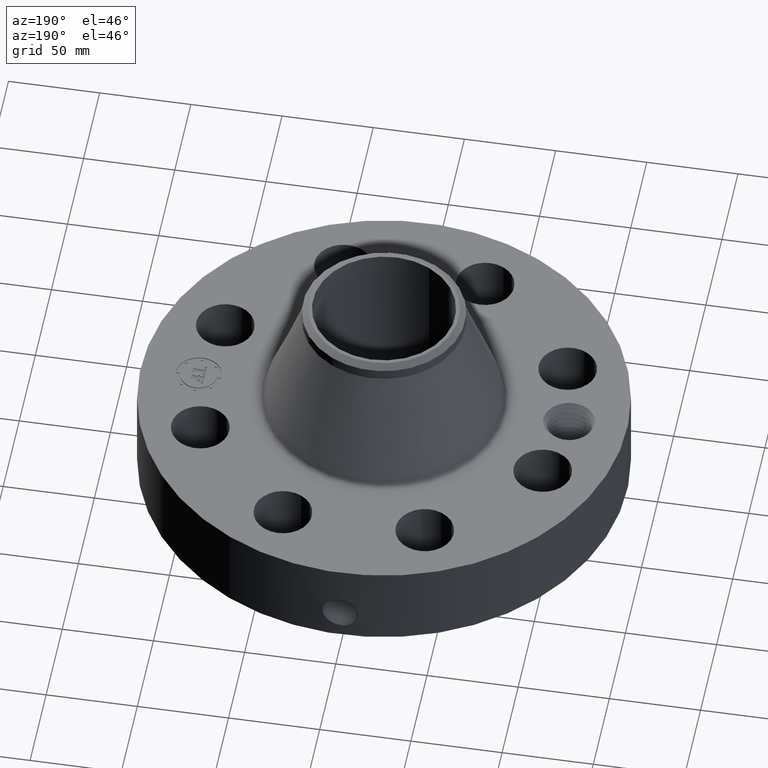
[diagram: clean part render]
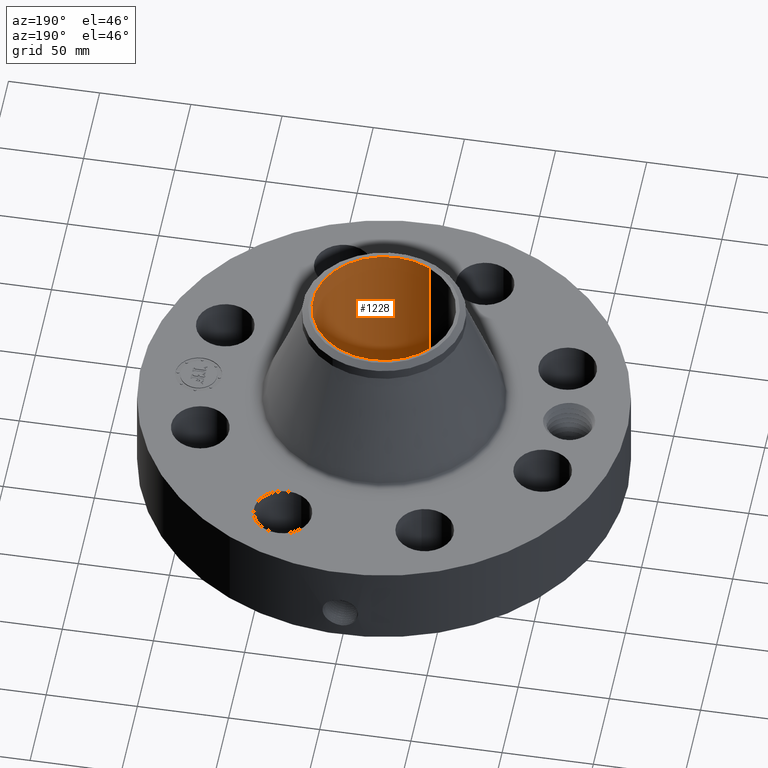
[diagram: same view with one face highlighted and labeled with its STEP entity id]
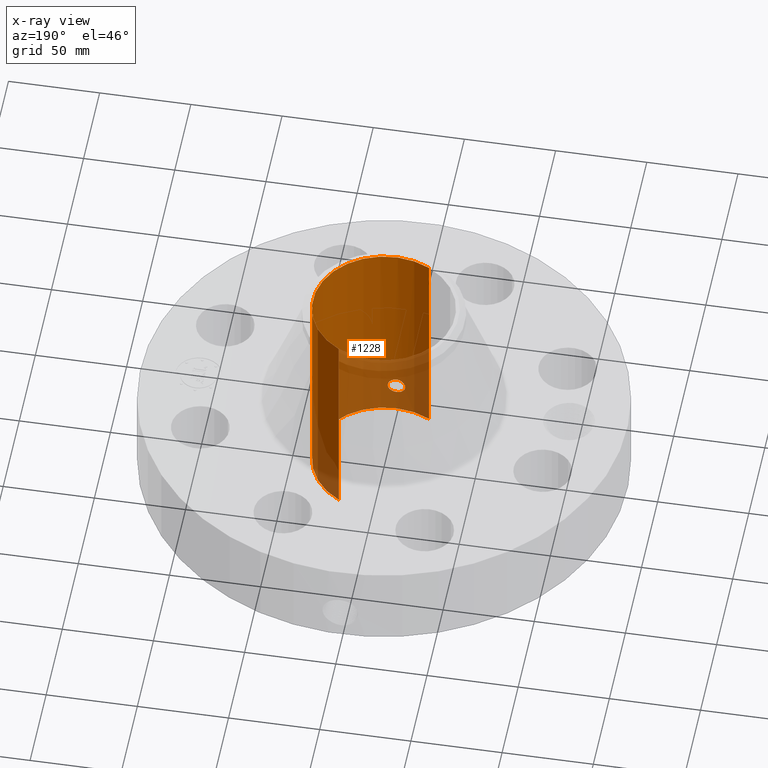
[diagram: x-ray of the same camera — body ghosted, the highlighted face saturated]
A machine part, auxiliary view. The second image highlights one B-rep face of the part: STEP entity #1228.
The next image is the same camera in x-ray: the body ghosted, the highlighted face saturated — about 32% of this face is hidden behind the body in this view.
In plain terms, the highlighted cylindrical surface (partial cylindrical patch) has radius 38.9636 mm, axis along (0, 0, -1).
Its self-contained STEP definition (entity closure, byte-faithful):
#249=AXIS2_PLACEMENT_3D('Circle Axis2P3D',#247,#248,$) ;
#1159=AXIS2_PLACEMENT_3D('Cylinder Axis2P3D',#1156,#1157,#1158) ;
#1163=AXIS2_PLACEMENT_3D('Circle Axis2P3D',#1161,#1162,$) ;
#247=CARTESIAN_POINT('Axis2P3D Location',(0.,0.,0.250000000001)) ;
#251=CARTESIAN_POINT('Vertex',(0.735438776222,1.34621164995,0.250000000001)) ;
#253=CARTESIAN_POINT('Vertex',(-0.735438776222,-1.34621164995,0.250000000001)) ;
#1156=CARTESIAN_POINT('Axis2P3D Location',(0.,0.,2.56000000001)) ;
#1161=CARTESIAN_POINT('Axis2P3D Location',(0.,0.,4.87000000002)) ;
#1165=CARTESIAN_POINT('Vertex',(0.735438776222,1.34621164995,4.87000000002)) ;
#1167=CARTESIAN_POINT('Vertex',(-0.735438776222,-1.34621164995,4.87000000002)) ;
#1170=CARTESIAN_POINT('Line Origine',(0.735438776222,1.34621164995,2.56000000001)) ;
#1175=CARTESIAN_POINT('Line Origine',(-0.735438776222,-1.34621164995,2.56000000001)) ;
#1187=CARTESIAN_POINT('Control Point',(0.164546730355,-1.52514929549,0.850107711515)) ;
#1188=CARTESIAN_POINT('Control Point',(0.153730987741,-1.52631619443,0.830309627459)) ;
#1189=CARTESIAN_POINT('Control Point',(0.139943198897,-1.52770675216,0.812148390871)) ;
#1190=CARTESIAN_POINT('Control Point',(0.123507748959,-1.52917958204,0.796208112034)) ;
#1191=CARTESIAN_POINT('Control Point',(0.0771300553255,-1.53257507292,0.763187347527)) ;
#1192=CARTESIAN_POINT('Control Point',(0.0211174569544,-1.53443807468,0.74899752833)) ;
#1193=CARTESIAN_POINT('Control Point',(-0.0139156713073,-1.53452842349,0.74833651336)) ;
#1194=CARTESIAN_POINT('Control Point',(-0.0704492146867,-1.53291709887,0.760416237495)) ;
#1195=CARTESIAN_POINT('Control Point',(-0.118051609566,-1.52962023944,0.791691344337)) ;
#1196=CARTESIAN_POINT('Control Point',(-0.135083668773,-1.52815406454,0.807020195609)) ;
#1197=CARTESIAN_POINT('Control Point',(-0.174443725802,-1.52429835588,0.855045646795)) ;
#1198=CARTESIAN_POINT('Control Point',(-0.192228358506,-1.52190251018,0.916011178547)) ;
#1199=CARTESIAN_POINT('Control Point',(-0.192989830594,-1.52179279368,0.956827431152)) ;
#1200=CARTESIAN_POINT('Control Point',(-0.183177815632,-1.52313920758,0.995788315651)) ;
#1201=CARTESIAN_POINT('Control Point',(-0.164546730355,-1.52514929549,1.02989228849)) ;
#1202=CARTESIAN_POINT('Vertex',(0.164546730355,-1.52514929549,0.850107711515)) ;
#1204=CARTESIAN_POINT('Vertex',(-0.164546730355,-1.52514929549,1.02989228849)) ;
#1208=CARTESIAN_POINT('Control Point',(-0.164546730355,-1.52514929549,1.02989228849)) ;
#1209=CARTESIAN_POINT('Control Point',(-0.153730987742,-1.52631619443,1.04969037255)) ;
#1210=CARTESIAN_POINT('Control Point',(-0.139943198899,-1.52770675216,1.06785160913)) ;
#1211=CARTESIAN_POINT('Control Point',(-0.123507748955,-1.52917958204,1.08379188798)) ;
#1212=CARTESIAN_POINT('Control Point',(-0.0771300553223,-1.53257507292,1.11681265248)) ;
#1213=CARTESIAN_POINT('Control Point',(-0.0211174569534,-1.53443807468,1.13100247168)) ;
#1214=CARTESIAN_POINT('Control Point',(0.0139156713103,-1.53452842349,1.13166348665)) ;
#1215=CARTESIAN_POINT('Control Point',(0.0704492146782,-1.53291709887,1.11958376251)) ;
#1216=CARTESIAN_POINT('Control Point',(0.11805160955,-1.52962023944,1.08830865568)) ;
#1217=CARTESIAN_POINT('Control Point',(0.135083668788,-1.52815406454,1.07297980438)) ;
#1218=CARTESIAN_POINT('Control Point',(0.174443725814,-1.52429835588,1.02495435319)) ;
#1219=CARTESIAN_POINT('Control Point',(0.192228358514,-1.52190251018,0.963988821434)) ;
#1220=CARTESIAN_POINT('Control Point',(0.1929898306,-1.52179279367,0.923172568881)) ;
#1221=CARTESIAN_POINT('Control Point',(0.183177815638,-1.52313920758,0.884211684368)) ;
#1222=CARTESIAN_POINT('Control Point',(0.164546730355,-1.52514929549,0.850107711515)) ;
#248=DIRECTION('Axis2P3D Direction',(0.,0.,-0.0393700787402)) ;
#1157=DIRECTION('Axis2P3D Direction',(0.,0.,-0.0393700787402)) ;
#1158=DIRECTION('Axis2P3D XDirection',(-0.0188750212049,-0.0345504945626,0.)) ;
#1162=DIRECTION('Axis2P3D Direction',(0.,0.,-0.0393700787402)) ;
#1171=DIRECTION('Vector Direction',(0.,0.,-0.0393700787402)) ;
#1176=DIRECTION('Vector Direction',(0.,0.,-0.0393700787402)) ;
#1172=VECTOR('Line Direction',#1171,0.0393700787402) ;
#1177=VECTOR('Line Direction',#1176,0.0393700787402) ;
#1181=ORIENTED_EDGE('',*,*,#1169,.F.) ;
#1182=ORIENTED_EDGE('',*,*,#1174,.T.) ;
#1183=ORIENTED_EDGE('',*,*,#255,.T.) ;
#1184=ORIENTED_EDGE('',*,*,#1179,.F.) ;
#1225=ORIENTED_EDGE('',*,*,#1206,.F.) ;
#1226=ORIENTED_EDGE('',*,*,#1223,.F.) ;
#1227=FACE_BOUND('',#1224,.T.) ;
#1228=ADVANCED_FACE('PartBody',(#1185,#1227),#1160,.F.) ;
#1186=B_SPLINE_CURVE_WITH_KNOTS('',5,(#1187,#1188,#1189,#1190,#1191,#1192,#1193,#1194,#1195,#1196,#1197,#1198,#1199,#1200,#1201),.UNSPECIFIED.,.F.,.U.,(6,3,3,3,6),(0.,4.05727166035,10.1291862377,14.1895477964,21.178561588),.UNSPECIFIED.) ;
#1207=B_SPLINE_CURVE_WITH_KNOTS('',5,(#1208,#1209,#1210,#1211,#1212,#1213,#1214,#1215,#1216,#1217,#1218,#1219,#1220,#1221,#1222),.UNSPECIFIED.,.F.,.U.,(6,3,3,3,6),(0.,4.05727165998,10.1291862373,14.189547794,21.1785615879),.UNSPECIFIED.) ;
#250=CIRCLE('generated circle',#249,1.53400000001) ;
#1164=CIRCLE('generated circle',#1163,1.53400000001) ;
#1160=CYLINDRICAL_SURFACE('generated cylinder',#1159,1.53400000001) ;
#255=EDGE_CURVE('',#252,#254,#250,.T.) ;
#1169=EDGE_CURVE('',#1166,#1168,#1164,.T.) ;
#1174=EDGE_CURVE('',#1166,#252,#1173,.T.) ;
#1179=EDGE_CURVE('',#1168,#254,#1178,.T.) ;
#1206=EDGE_CURVE('',#1203,#1205,#1186,.T.) ;
#1223=EDGE_CURVE('',#1205,#1203,#1207,.T.) ;
#1180=EDGE_LOOP('',(#1181,#1182,#1183,#1184)) ;
#1224=EDGE_LOOP('',(#1225,#1226)) ;
#1185=FACE_OUTER_BOUND('',#1180,.T.) ;
#1173=LINE('Line',#1170,#1172) ;
#1178=LINE('Line',#1175,#1177) ;
#252=VERTEX_POINT('',#251) ;
#254=VERTEX_POINT('',#253) ;
#1166=VERTEX_POINT('',#1165) ;
#1168=VERTEX_POINT('',#1167) ;
#1203=VERTEX_POINT('',#1202) ;
#1205=VERTEX_POINT('',#1204) ;